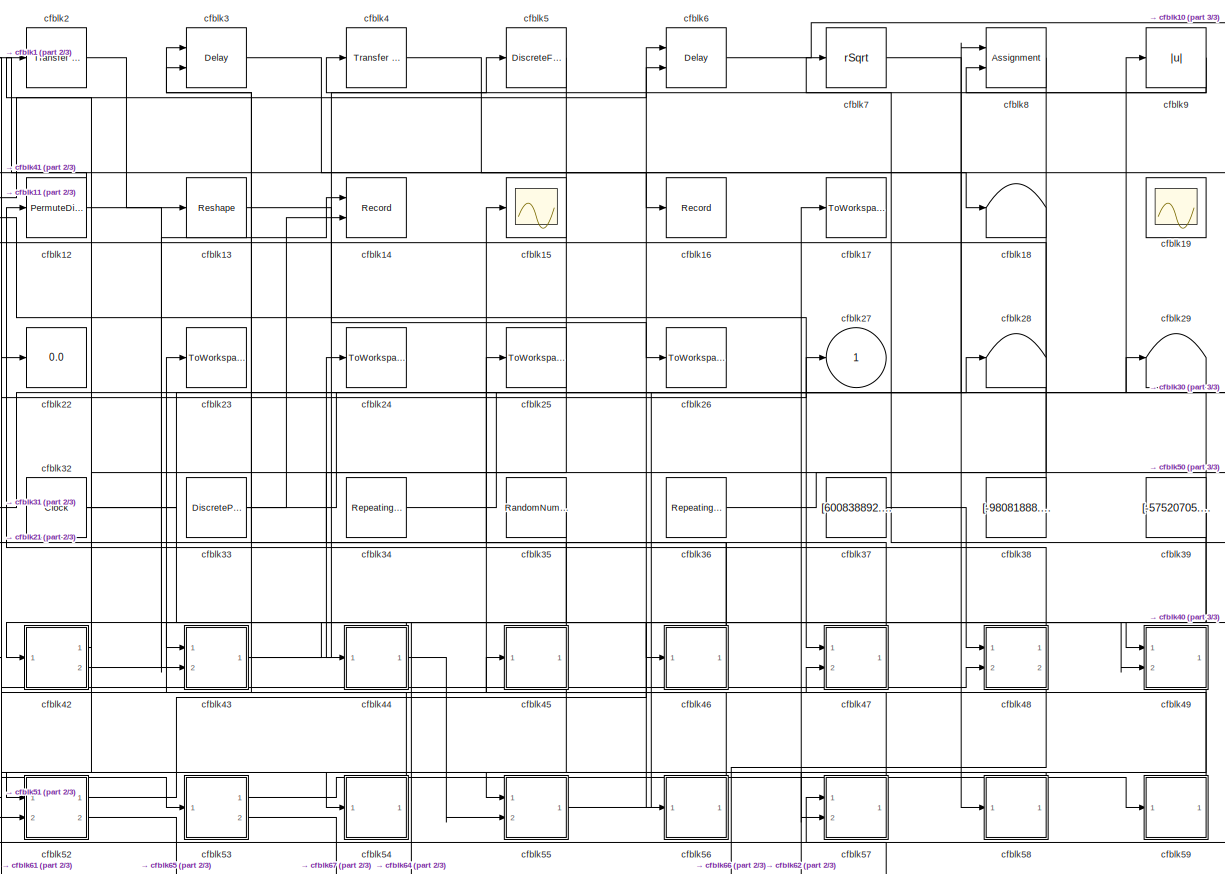
[diagram: root canvas - part 1/3, most of the canvas]
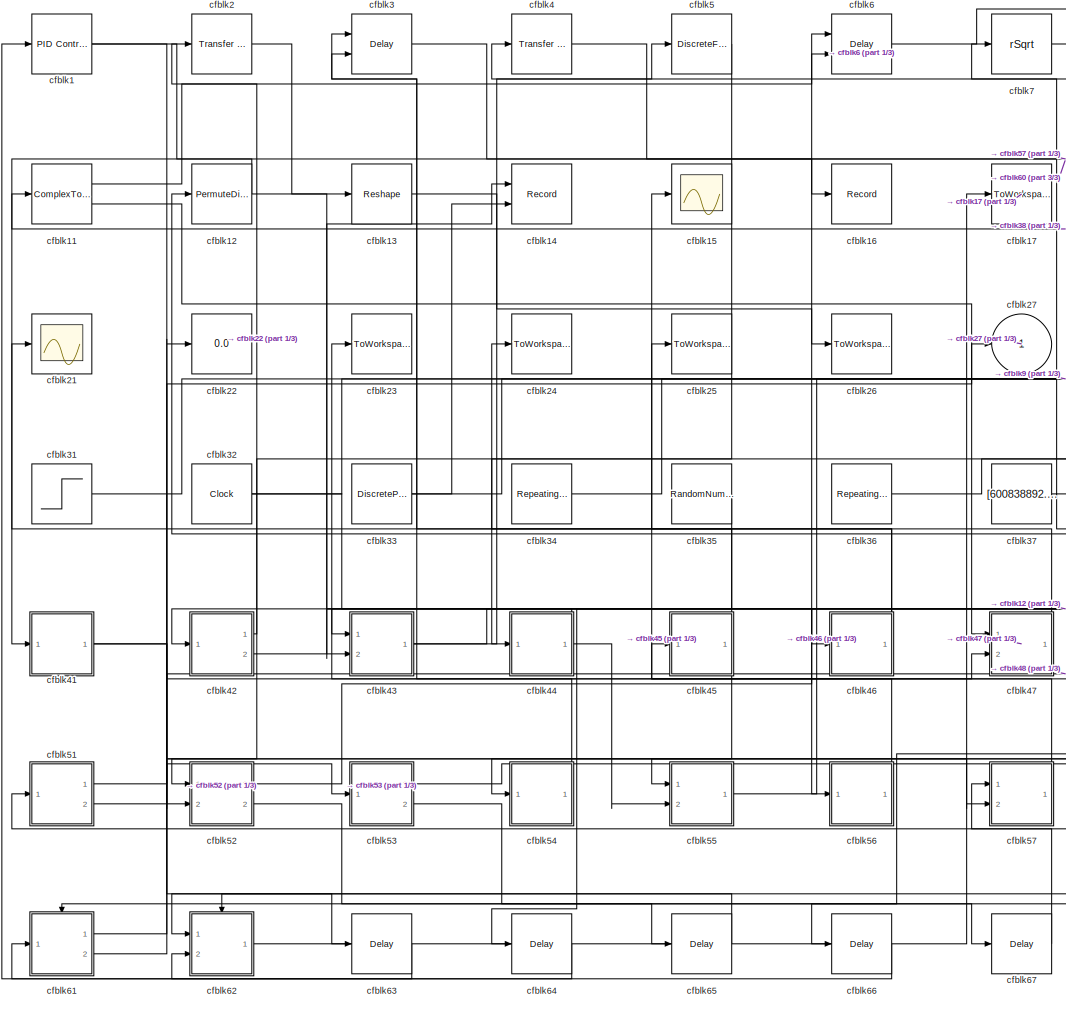
[diagram: root canvas - part 2/3, center side, full height]
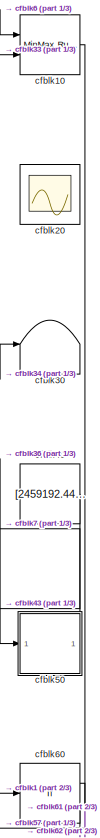
[diagram: root canvas - part 3/3, right side, full height]
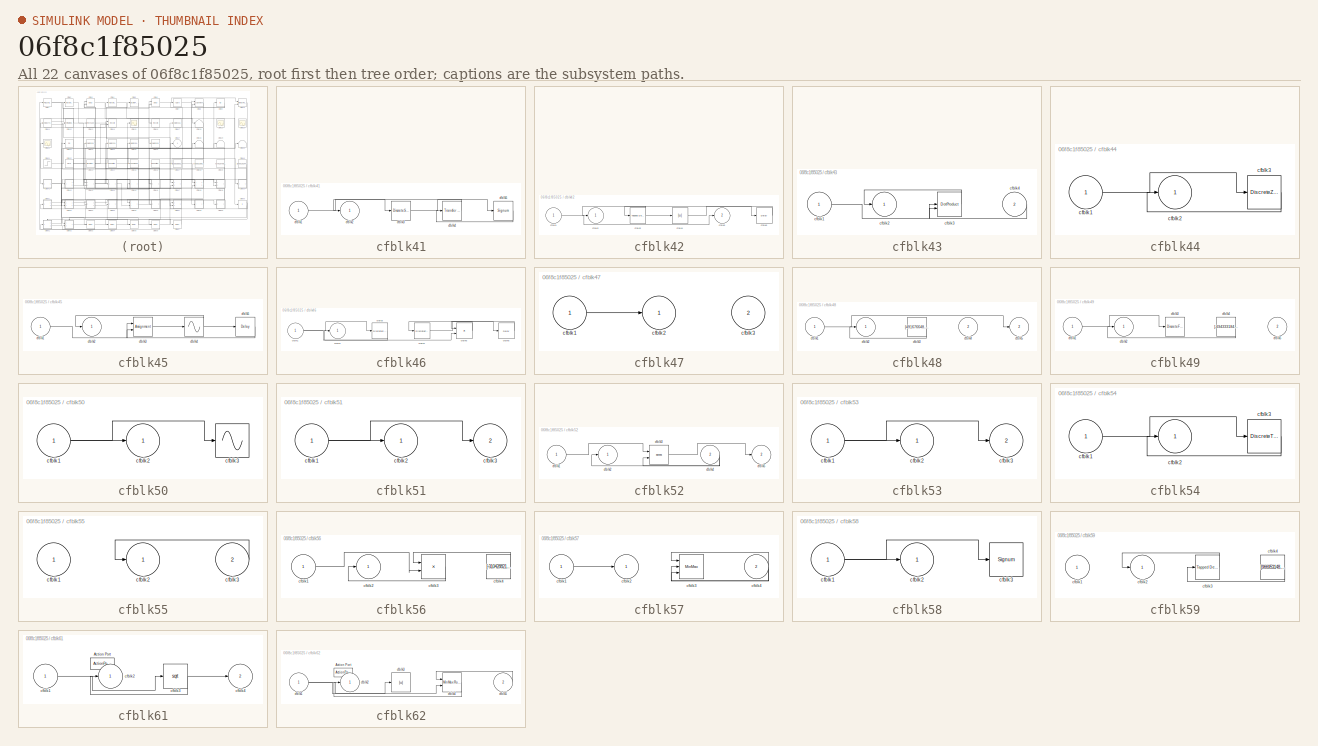
[diagram: thumbnail index - all 22 canvases of the model, root first then tree order]
MODEL slx_06f8c1f85025
KIND model
CONFIG AbsTol = auto
CONFIG EnableMultiTasking = off
CONFIG FixedStep = auto
CONFIG MaxStep = auto
CONFIG MinStep = auto
CONFIG RelTol = 1e-3
CONFIG SampleTimeConstraint = Unconstrained
CONFIG SolverName = VariableStepAuto
CONFIG StartTime = 0.0
CONFIG StopTime = 10.0
BLOCK [Reference] cfblk1  REF=slpidlib/PID Controller
  Ports = [1, 1]
  SourceBlock = slpidlib/PID Controller
  SourceProductBaseCode = SL
  SourceType = PID 1dof
BLOCK [Reference] cfblk10  REF=simulink/Math
Operations/MinMax
Running
Resettable
  Ports = [2, 1]
  SourceBlock = simulink/Math\nOperations/MinMax\nRunning\nResettable
  SourceProductBaseCode = SL
  SourceType = MinMax Running Resettable
BLOCK [ComplexToRealImag] cfblk11
  Ports = [1, 2]
BLOCK [PermuteDimensions] cfblk12
BLOCK [Reshape] cfblk13
  Ports = [1, 1]
BLOCK [Record] cfblk14
  CompatibilityTag = XY
  FileSettingsInternal = {"entries":[{"content":{"excelSettings":{"content":{},"type":"Streamout.ExcelSettings"}},"type":"Streamout.FileSettingStorage","uuid":"d8607e28-881b-4112-add2-e3f322c6c66a"}],"packageUris":["http://schema.mathworks.com/mf0/streamout_blocks/R2020a"],"version":"1.0"}
  Layout = [1 1]
  Ports = [2]
  SignalsInternal = {"entries":[{"content":{"signals":[{"content":{"blockPath":["sampleModel277/cfblk14"],"channel":[],"dimensions":[1],"domain":"sampleModel277/cfblk14","lineColor":"#a2142f","plots":[1],"port":1,"sid":[""],"signalID":11589,"signalName":"cfblk42:2"},"type":"RecordBlkView.Signal","uuid":"b47615fb-d819-4e60-bc98-0c25ee9ba6d9"},{"content":{"blockPath":["sampleModel277/cfblk14"],"channel":[],"dimensions"...<+387ch>
  VisualizationBindings = {"xyplotplugin":{"info":[{"series":[{"bindingParametersList":[{"parameter":"X-Axis","signalID":11589,"signalName":"cfblk42:2"},{"parameter":"Y-Axis","signalID":11593,"signalName":"cfblk33"}],"seriesID":22106}],"subplotID":1}]}}
BLOCK [Scope] cfblk15
  Floating = off
  NumInputPorts = 1
  Ports = [1]
BLOCK [Record] cfblk16
  FileSettingsInternal = {"entries":[{"content":{"excelSettings":{"content":{},"type":"Streamout.ExcelSettings"}},"type":"Streamout.FileSettingStorage","uuid":"0defbab6-1f19-424a-8477-c9e0ae50d269"}],"packageUris":["http://schema.mathworks.com/mf0/streamout_blocks/R2020a"],"version":"1.0"}
  Ports = [1]
  SignalsInternal = {"entries":[{"content":{"signals":[{"content":{"blockPath":["sampleModel277/cfblk16"],"channel":[],"dimensions":[1],"domain":"sampleModel277/cfblk16","lineColor":"#ff13a6","plots":[1],"port":1,"sid":[""],"signalID":11597,"signalName":"cfblk4"},"type":"RecordBlkView.Signal","uuid":"1bcd9140-bb26-4ac9-91fa-95d908c78e84"}]},"type":"RecordBlkView.InputSignals","uuid":"defb70cb-bd16-40b5-b6bd-1390d4c46...<+97ch>
  VisualizationBindings = {"sparklinesplugin":{"info":[{"bindingParametersList":[],"subplotID":1}]}}
BLOCK [ToWorkspace] cfblk17
  FixptAsFi = on
  MaxDataPoints = inf
  Ports = [1]
  SampleTime = -1
  SaveFormat = Timeseries
  VariableName = npcwugr
BLOCK [Terminator] cfblk18
BLOCK [Scope] cfblk19
  Floating = on
  NumInputPorts = 1
  Ports = []
BLOCK [Reference] cfblk2  REF=simulink/Discrete/Transfer Fcn
Lead or Lag
  Ports = [1, 1]
  SourceBlock = simulink/Discrete/Transfer Fcn\nLead or Lag
  SourceProductBaseCode = SL
  SourceType = Lead or Lag Compensator
BLOCK [Scope] cfblk20
  Floating = on
  NumInputPorts = 1
  Ports = []
BLOCK [Scope] cfblk21
  Floating = off
  NumInputPorts = 1
  Ports = [1]
BLOCK [Display] cfblk22
  Decimation = 1
  Ports = [1]
BLOCK [ToWorkspace] cfblk23
  FixptAsFi = on
  MaxDataPoints = inf
  Ports = [1]
  SampleTime = -1
  SaveFormat = Timeseries
  VariableName = pbvfznx
BLOCK [ToWorkspace] cfblk24
  FixptAsFi = on
  MaxDataPoints = inf
  Ports = [1]
  SampleTime = -1
  SaveFormat = Timeseries
  VariableName = lelcpin
BLOCK [ToWorkspace] cfblk25
  FixptAsFi = on
  MaxDataPoints = inf
  Ports = [1]
  SampleTime = -1
  SaveFormat = Timeseries
  VariableName = lcwojul
BLOCK [ToWorkspace] cfblk26
  FixptAsFi = on
  MaxDataPoints = inf
  Ports = [1]
  SampleTime = -1
  SaveFormat = Timeseries
  VariableName = abaqxpr
BLOCK [Outport] cfblk27
BLOCK [Terminator] cfblk28
BLOCK [Terminator] cfblk29
BLOCK [Delay] cfblk3
  InputPortMap = u0,e6
  Ports = [2, 1]
  SampleTime = 1
  ShowEnablePort = on
BLOCK [Terminator] cfblk30
BLOCK [Step] cfblk31
  After = [511590212.511346]
  Before = [446463938.940036]
  SampleTime = 0
  Time = [8.000000]
BLOCK [Clock] cfblk32
BLOCK [DiscretePulseGenerator] cfblk33
  Amplitude = [-336989697.738639]
  Period = [82161498.785014]
  PhaseDelay = [6.000000]
  Ports = [0, 1]
  PulseType = Time based
  PulseWidth = 5
BLOCK [Reference] cfblk34  REF=simulink/Sources/Repeating
Sequence
  Ports = [0, 1]
  SourceBlock = simulink/Sources/Repeating\nSequence
  SourceProductBaseCode = SL
  SourceType = Repeating table
BLOCK [RandomNumber] cfblk35
  Mean = [14216.609925]
  SampleTime = 0.1
  Seed = [438589470.000000]
  Variance = [79975.789287]
BLOCK [Reference] cfblk36  REF=simulink/Sources/Repeating
Sequence
  Ports = [0, 1]
  SourceBlock = simulink/Sources/Repeating\nSequence
  SourceProductBaseCode = SL
  SourceType = Repeating table
BLOCK [Constant] cfblk37
  SampleTime = 1
  Value = [600838892.523439]
BLOCK [Constant] cfblk38
  SampleTime = 1
  Value = [-98081888.780690]
BLOCK [Constant] cfblk39
  SampleTime = 1
  Value = [-57520705.505406]
BLOCK [Reference] cfblk4  REF=simulink/Discrete/Transfer Fcn
Lead or Lag
  Ports = [1, 1]
  SourceBlock = simulink/Discrete/Transfer Fcn\nLead or Lag
  SourceProductBaseCode = SL
  SourceType = Lead or Lag Compensator
BLOCK [Constant] cfblk40
  SampleTime = 1
  Value = [2459192.445640]
BLOCK [SubSystem] cfblk41
  Ports = [1, 1]
  RequestExecContextInheritance = off
BLOCK [Inport] cfblk41/cfblk1
BLOCK [Outport] cfblk41/cfblk2
BLOCK [DiscreteStateSpace] cfblk41/cfblk3
BLOCK [Reference] cfblk41/cfblk4  REF=simulink/Discrete/Transfer Fcn
First Order
  Ports = [1, 1]
  SourceBlock = simulink/Discrete/Transfer Fcn\nFirst Order
  SourceProductBaseCode = SL
  SourceType = First Order Transfer Fcn
BLOCK [Signum] cfblk41/cfblk5
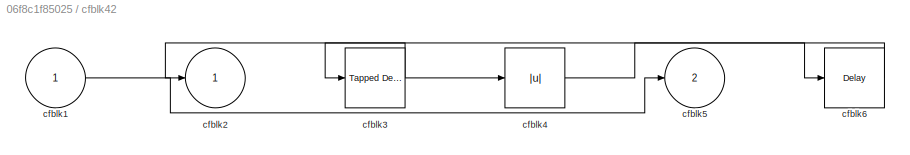
BLOCK [SubSystem] cfblk42
  Ports = [1, 2]
  RequestExecContextInheritance = off
BLOCK [Inport] cfblk42/cfblk1
BLOCK [Outport] cfblk42/cfblk2
BLOCK [Reference] cfblk42/cfblk3  REF=simulink/Discrete/Tapped Delay
  Ports = [1, 1]
  SourceBlock = simulink/Discrete/Tapped Delay
  SourceProductBaseCode = SL
  SourceType = Tapped Delay Line
BLOCK [Abs] cfblk42/cfblk4
  SaturateOnIntegerOverflow = off
BLOCK [Outport] cfblk42/cfblk5
  Port = 2
BLOCK [Delay] cfblk42/cfblk6
  InputPortMap = u0
  Ports = [1, 1]
  SampleTime = 1
BLOCK [SubSystem] cfblk43
  Ports = [2, 1]
  RequestExecContextInheritance = off
BLOCK [Inport] cfblk43/cfblk1
BLOCK [Outport] cfblk43/cfblk2
BLOCK [DotProduct] cfblk43/cfblk3
  OutDataTypeStr = Inherit: Inherit via internal rule
BLOCK [Inport] cfblk43/cfblk4
  Port = 2
BLOCK [SubSystem] cfblk44
  Ports = [1, 1]
  RequestExecContextInheritance = off
BLOCK [Inport] cfblk44/cfblk1
BLOCK [Outport] cfblk44/cfblk2
BLOCK [DiscreteZeroPole] cfblk44/cfblk3
  Gain = 1
  Poles = [0 0.5]
BLOCK [SubSystem] cfblk45
  Ports = [1, 1]
  RequestExecContextInheritance = off
BLOCK [Inport] cfblk45/cfblk1
BLOCK [Outport] cfblk45/cfblk2
BLOCK [Assignment] cfblk45/cfblk3
  DiagnosticForDimensions = Warning
  IndexOptions = Index vector (dialog)
  Indices = 1
  OutputSizes = 1
  Ports = [2, 1]
BLOCK [Sin] cfblk45/cfblk4
  Ports = [1, 1]
  SampleTime = 0
  TimeSource = Use external signal
BLOCK [Delay] cfblk45/cfblk5
  InputPortMap = u0
  Ports = [1, 1]
  SampleTime = 1
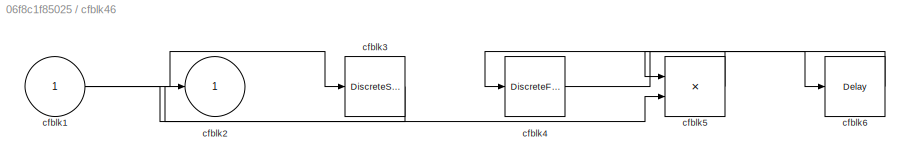
BLOCK [SubSystem] cfblk46
  Ports = [1, 1]
  RequestExecContextInheritance = off
BLOCK [Inport] cfblk46/cfblk1
BLOCK [Outport] cfblk46/cfblk2
BLOCK [DiscreteStateSpace] cfblk46/cfblk3
BLOCK [DiscreteFilter] cfblk46/cfblk4
  InputPortMap = u0
  Ports = [1, 1]
  SampleTime = 1
BLOCK [Product] cfblk46/cfblk5
  Ports = [2, 1]
BLOCK [Delay] cfblk46/cfblk6
  InputPortMap = u0
  Ports = [1, 1]
  SampleTime = 1
BLOCK [SubSystem] cfblk47
  Ports = [2, 1]
  RequestExecContextInheritance = off
BLOCK [Inport] cfblk47/cfblk1
BLOCK [Outport] cfblk47/cfblk2
BLOCK [Inport] cfblk47/cfblk3
  Port = 2
BLOCK [SubSystem] cfblk48
  Ports = [2, 2]
  RequestExecContextInheritance = off
BLOCK [Inport] cfblk48/cfblk1
BLOCK [Outport] cfblk48/cfblk2
BLOCK [Constant] cfblk48/cfblk3
  SampleTime = 1
  Value = [491676648.891613]
BLOCK [Inport] cfblk48/cfblk4
  Port = 2
BLOCK [Outport] cfblk48/cfblk5
  Port = 2
BLOCK [SubSystem] cfblk49
  Ports = [2, 1]
  RequestExecContextInheritance = off
BLOCK [Inport] cfblk49/cfblk1
BLOCK [Outport] cfblk49/cfblk2
BLOCK [DiscreteFilter] cfblk49/cfblk3
  InputPortMap = u0
  Ports = [1, 1]
  SampleTime = 1
BLOCK [Constant] cfblk49/cfblk4
  SampleTime = 1
  Value = [-694333184.074195]
BLOCK [Inport] cfblk49/cfblk5
  Port = 2
BLOCK [DiscreteFilter] cfblk5
  InputPortMap = u0
  Ports = [1, 1]
  SampleTime = 1
BLOCK [SubSystem] cfblk50
  Ports = [1, 1]
  RequestExecContextInheritance = off
BLOCK [Inport] cfblk50/cfblk1
BLOCK [Outport] cfblk50/cfblk2
BLOCK [Sin] cfblk50/cfblk3
  Ports = [1, 1]
  SampleTime = 0
  TimeSource = Use external signal
BLOCK [SubSystem] cfblk51
  Ports = [1, 2]
  RequestExecContextInheritance = off
BLOCK [Inport] cfblk51/cfblk1
BLOCK [Outport] cfblk51/cfblk2
BLOCK [Outport] cfblk51/cfblk3
  Port = 2
BLOCK [SubSystem] cfblk52
  Ports = [2, 2]
  RequestExecContextInheritance = off
BLOCK [Inport] cfblk52/cfblk1
BLOCK [Outport] cfblk52/cfblk2
BLOCK [Math] cfblk52/cfblk3
  Operator = rem
  Ports = [2, 1]
BLOCK [Inport] cfblk52/cfblk4
  Port = 2
BLOCK [Outport] cfblk52/cfblk5
  Port = 2
BLOCK [SubSystem] cfblk53
  Ports = [1, 2]
  RequestExecContextInheritance = off
BLOCK [Inport] cfblk53/cfblk1
BLOCK [Outport] cfblk53/cfblk2
BLOCK [Outport] cfblk53/cfblk3
  Port = 2
BLOCK [SubSystem] cfblk54
  Ports = [1, 1]
  RequestExecContextInheritance = off
BLOCK [Inport] cfblk54/cfblk1
BLOCK [Outport] cfblk54/cfblk2
BLOCK [DiscreteTransferFcn] cfblk54/cfblk3
  InputPortMap = u0
  Ports = [1, 1]
  SampleTime = 1
BLOCK [SubSystem] cfblk55
  Ports = [2, 1]
  RequestExecContextInheritance = off
BLOCK [Inport] cfblk55/cfblk1
BLOCK [Outport] cfblk55/cfblk2
BLOCK [Inport] cfblk55/cfblk3
  Port = 2
BLOCK [SubSystem] cfblk56
  Ports = [1, 1]
  RequestExecContextInheritance = off
BLOCK [Inport] cfblk56/cfblk1
BLOCK [Outport] cfblk56/cfblk2
BLOCK [Product] cfblk56/cfblk3
  Inputs = **
  Ports = [2, 1]
BLOCK [Constant] cfblk56/cfblk4
  SampleTime = 1
  Value = [-310428821.926030]
BLOCK [SubSystem] cfblk57
  Ports = [2, 1]
  RequestExecContextInheritance = off
BLOCK [Inport] cfblk57/cfblk1
BLOCK [Outport] cfblk57/cfblk2
BLOCK [MinMax] cfblk57/cfblk3
  Function = max
  Inputs = 3
  Ports = [3, 1]
BLOCK [Inport] cfblk57/cfblk4
  Port = 2
BLOCK [SubSystem] cfblk58
  Ports = [1, 1]
  RequestExecContextInheritance = off
BLOCK [Inport] cfblk58/cfblk1
BLOCK [Outport] cfblk58/cfblk2
BLOCK [Signum] cfblk58/cfblk3
BLOCK [SubSystem] cfblk59
  Ports = [1, 1]
  RequestExecContextInheritance = off
BLOCK [Inport] cfblk59/cfblk1
BLOCK [Outport] cfblk59/cfblk2
BLOCK [Reference] cfblk59/cfblk3  REF=simulink/Discrete/Tapped Delay
  Ports = [1, 1]
  SourceBlock = simulink/Discrete/Tapped Delay
  SourceProductBaseCode = SL
  SourceType = Tapped Delay Line
BLOCK [Constant] cfblk59/cfblk4
  SampleTime = 1
  Value = [966953148.697981]
BLOCK [Delay] cfblk6
  InputPortMap = u0,e6
  Ports = [2, 1]
  SampleTime = 1
  ShowEnablePort = on
BLOCK [If] cfblk60
  IfExpression = u1 >= 0
  Ports = [1, 2]
  SampleTime = 1
BLOCK [SubSystem] cfblk61
  Ports = [1, 2, 0, 0, 0, 0, 0, 1]
  RequestExecContextInheritance = off
  TreatAsAtomicUnit = on
BLOCK [ActionPort] cfblk61/Action Port
  ActionPortLabel = if(u1 >= 0)
BLOCK [Inport] cfblk61/cfblk1
BLOCK [Outport] cfblk61/cfblk2
BLOCK [Sqrt] cfblk61/cfblk3
BLOCK [Outport] cfblk61/cfblk4
  Port = 2
BLOCK [SubSystem] cfblk62
  Ports = [2, 1, 0, 0, 0, 0, 0, 1]
  RequestExecContextInheritance = off
  TreatAsAtomicUnit = on
BLOCK [ActionPort] cfblk62/Action Port
  ActionPortLabel = else
BLOCK [Inport] cfblk62/cfblk1
BLOCK [Outport] cfblk62/cfblk2
BLOCK [Abs] cfblk62/cfblk3
  SaturateOnIntegerOverflow = off
BLOCK [Reference] cfblk62/cfblk4  REF=simulink/Math
Operations/MinMax
Running
Resettable
  Ports = [2, 1]
  SourceBlock = simulink/Math\nOperations/MinMax\nRunning\nResettable
  SourceProductBaseCode = SL
  SourceType = MinMax Running Resettable
BLOCK [Inport] cfblk62/cfblk5
  Port = 2
BLOCK [Delay] cfblk63
  InputPortMap = u0
  Ports = [1, 1]
  SampleTime = 1
BLOCK [Delay] cfblk64
  InputPortMap = u0
  Ports = [1, 1]
  SampleTime = 1
BLOCK [Delay] cfblk65
  InputPortMap = u0
  Ports = [1, 1]
  SampleTime = 1
BLOCK [Delay] cfblk66
  InputPortMap = u0
  Ports = [1, 1]
  SampleTime = 1
BLOCK [Delay] cfblk67
  InputPortMap = u0
  Ports = [1, 1]
  SampleTime = 1
BLOCK [Sqrt] cfblk7
  AlgorithmType = Newton-Raphson
  Operator = rSqrt
BLOCK [Assignment] cfblk8
  DiagnosticForDimensions = Warning
  IndexOptions = Index vector (dialog)
  Indices = 1
  OutputSizes = 1
  Ports = [2, 1]
BLOCK [Abs] cfblk9
  SaturateOnIntegerOverflow = off
LINE cfblk10:1 -> cfblk57:1
LINE cfblk11:1 -> cfblk6:1
LINE cfblk11:2 -> cfblk47:1
NET cfblk12:1 -> cfblk41:1, cfblk49:2
LINE cfblk13:1 -> cfblk26:1
NET cfblk1:1 -> cfblk57:2, cfblk60:1
LINE cfblk2:1 -> cfblk13:1
LINE cfblk31:1 -> cfblk9:1
NET cfblk32:1 -> cfblk56:1, cfblk8:1
NET cfblk33:1 -> cfblk10:2, cfblk14:2
LINE cfblk34:1 -> cfblk30:1
LINE cfblk35:1 -> cfblk43:2
LINE cfblk36:1 -> cfblk50:1
LINE cfblk37:1 -> cfblk48:1
LINE cfblk38:1 -> cfblk11:1
NET cfblk39:1 -> cfblk29:1, cfblk46:1, cfblk54:1
LINE cfblk3:1 -> cfblk18:1
LINE cfblk40:1 -> cfblk43:1
LINE cfblk41/cfblk1:1 -> cfblk41/cfblk3:1
LINE cfblk41/cfblk3:1 -> cfblk41/cfblk5:1
LINE cfblk41/cfblk4:1 -> cfblk41/cfblk2:1
LINE cfblk41/cfblk5:1 -> cfblk41/cfblk4:1
NET cfblk41:1 -> cfblk47:2, cfblk63:1
LINE cfblk42/cfblk1:1 -> cfblk42/cfblk5:1
NET cfblk42/cfblk3:1 -> cfblk42/cfblk2:1, cfblk42/cfblk4:1
LINE cfblk42/cfblk4:1 -> cfblk42/cfblk6:1
LINE cfblk42/cfblk6:1 -> cfblk42/cfblk3:1
LINE cfblk42:1 -> cfblk2:1
LINE cfblk42:2 -> cfblk14:1
LINE cfblk43/cfblk1:1 -> cfblk43/cfblk3:2
LINE cfblk43/cfblk3:1 -> cfblk43/cfblk2:1
LINE cfblk43/cfblk4:1 -> cfblk43/cfblk3:1
NET cfblk43:1 -> cfblk49:1, cfblk5:1
LINE cfblk44/cfblk1:1 -> cfblk44/cfblk3:1
LINE cfblk44/cfblk3:1 -> cfblk44/cfblk2:1
NET cfblk44:1 -> cfblk42:1, cfblk55:2
LINE cfblk45/cfblk1:1 -> cfblk45/cfblk3:1
LINE cfblk45/cfblk3:1 -> cfblk45/cfblk4:1
NET cfblk45/cfblk4:1 -> cfblk45/cfblk2:1, cfblk45/cfblk5:1
LINE cfblk45/cfblk5:1 -> cfblk45/cfblk3:2
NET cfblk45:1 -> cfblk25:1, cfblk64:1
NET cfblk46/cfblk1:1 -> cfblk46/cfblk3:1, cfblk46/cfblk5:2
LINE cfblk46/cfblk3:1 -> cfblk46/cfblk2:1
LINE cfblk46/cfblk4:1 -> cfblk46/cfblk6:1
LINE cfblk46/cfblk5:1 -> cfblk46/cfblk4:1
LINE cfblk46/cfblk6:1 -> cfblk46/cfblk5:1
NET cfblk46:1 -> cfblk21:1, cfblk3:2
LINE cfblk47/cfblk1:1 -> cfblk47/cfblk2:1
LINE cfblk47:1 -> cfblk24:1
LINE cfblk48/cfblk1:1 -> cfblk48/cfblk5:1
LINE cfblk48/cfblk3:1 -> cfblk48/cfblk2:1
LINE cfblk48:1 -> cfblk12:1
LINE cfblk48:2 -> cfblk66:1
LINE cfblk49/cfblk1:1 -> cfblk49/cfblk3:1
LINE cfblk49/cfblk4:1 -> cfblk49/cfblk2:1
LINE cfblk49:1 -> cfblk52:2
LINE cfblk4:1 -> cfblk16:1
NET cfblk50/cfblk1:1 -> cfblk50/cfblk2:1, cfblk50/cfblk3:1
LINE cfblk50:1 -> cfblk7:1
NET cfblk51/cfblk1:1 -> cfblk51/cfblk2:1, cfblk51/cfblk3:1
LINE cfblk51:1 -> cfblk53:1
LINE cfblk51:2 -> cfblk22:1
LINE cfblk52/cfblk1:1 -> cfblk52/cfblk3:1
LINE cfblk52/cfblk3:1 -> cfblk52/cfblk5:1
NET cfblk52/cfblk4:1 -> cfblk52/cfblk2:1, cfblk52/cfblk3:2
LINE cfblk52:1 -> cfblk6:2
LINE cfblk52:2 -> cfblk65:1
NET cfblk53/cfblk1:1 -> cfblk53/cfblk2:1, cfblk53/cfblk3:1
LINE cfblk53:1 -> cfblk59:1
LINE cfblk53:2 -> cfblk67:1
LINE cfblk54/cfblk1:1 -> cfblk54/cfblk3:1
LINE cfblk54/cfblk3:1 -> cfblk54/cfblk2:1
LINE cfblk54:1 -> cfblk23:1
LINE cfblk55/cfblk3:1 -> cfblk55/cfblk2:1
LINE cfblk55:1 -> cfblk28:1
LINE cfblk56/cfblk1:1 -> cfblk56/cfblk3:2
LINE cfblk56/cfblk3:1 -> cfblk56/cfblk2:1
LINE cfblk56/cfblk4:1 -> cfblk56/cfblk3:1
LINE cfblk56:1 -> cfblk3:1
LINE cfblk57/cfblk1:1 -> cfblk57/cfblk2:1
NET cfblk57/cfblk4:1 -> cfblk57/cfblk3:1, cfblk57/cfblk3:2, cfblk57/cfblk3:3
LINE cfblk57:1 -> cfblk45:1
NET cfblk58/cfblk1:1 -> cfblk58/cfblk2:1, cfblk58/cfblk3:1
LINE cfblk58:1 -> cfblk55:1
LINE cfblk59/cfblk3:1 -> cfblk59/cfblk2:1
LINE cfblk59/cfblk4:1 -> cfblk59/cfblk3:1
LINE cfblk59:1 -> cfblk15:1
LINE cfblk5:1 -> cfblk52:1
LINE cfblk60:1 -> cfblk61:ifaction
LINE cfblk60:2 -> cfblk62:ifaction
LINE cfblk61/cfblk1:1 -> cfblk61/cfblk3:1
NET cfblk61/cfblk3:1 -> cfblk61/cfblk2:1, cfblk61/cfblk4:1
LINE cfblk61:1 -> cfblk27:1
LINE cfblk61:2 -> cfblk48:2
NET cfblk62/cfblk1:1 -> cfblk62/cfblk3:1, cfblk62/cfblk4:2
LINE cfblk62/cfblk4:1 -> cfblk62/cfblk2:1
LINE cfblk62/cfblk5:1 -> cfblk62/cfblk4:1
LINE cfblk62:1 -> cfblk17:1
LINE cfblk63:1 -> cfblk1:1
LINE cfblk64:1 -> cfblk61:1
LINE cfblk65:1 -> cfblk62:1
LINE cfblk66:1 -> cfblk62:2
LINE cfblk67:1 -> cfblk51:1
LINE cfblk6:1 -> cfblk10:1
LINE cfblk7:1 -> cfblk58:1
LINE cfblk8:1 -> cfblk44:1
NET cfblk9:1 -> cfblk4:1, cfblk8:2
note: NET lines group one-source signal fan-out (src -> all destinations, sorted); 1:1 wires keep LINE
